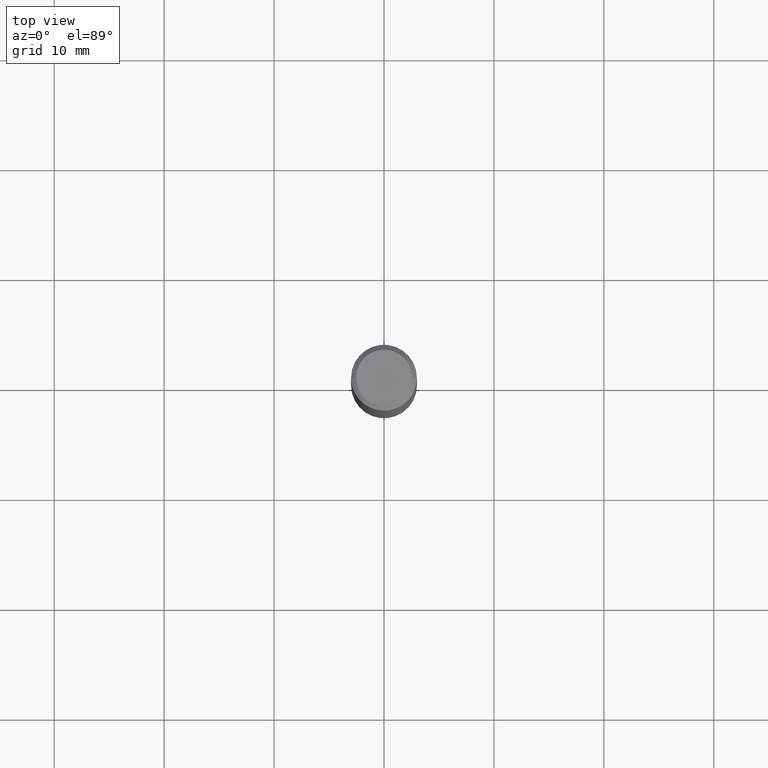
[diagram: clean part render]
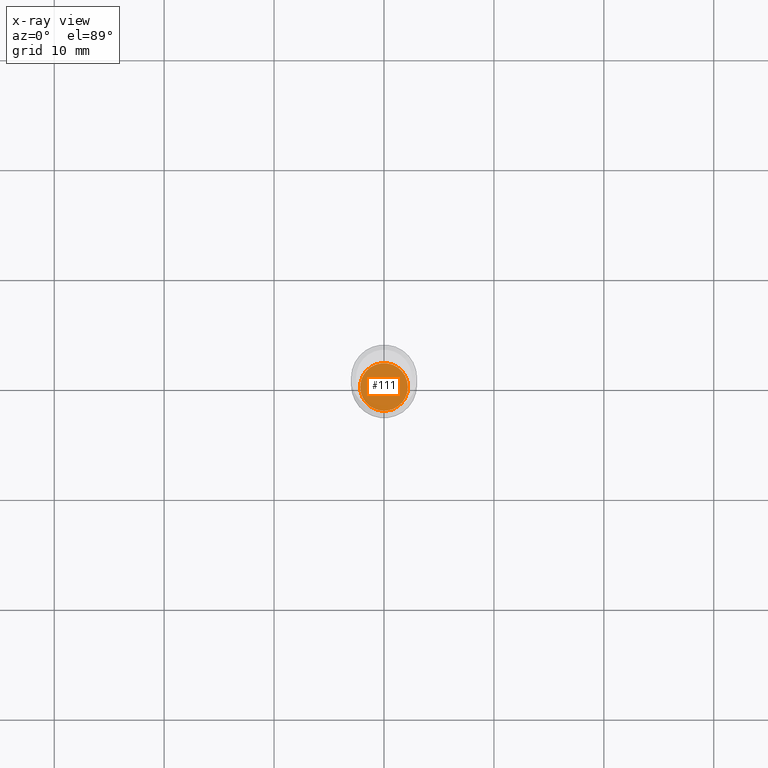
[diagram: x-ray — body ghosted, one internal face saturated and labeled with its STEP entity id]
A machine part, top view, then the same camera in x-ray: the body is ghosted and one INTERNAL B-rep face — a face not visible from any outside direction — is saturated and labeled: STEP entity #111.
In plain terms, the highlighted planar face has unit normal (-0, 0, 1).
Its self-contained STEP definition (entity closure, byte-faithful):
#14 = CARTESIAN_POINT ( 'NONE',  ( 4.717553874011746679E-29, -6.735416650762311704E-15, -1.929099999999999815 ) ) ;
#30 = VERTEX_POINT ( 'NONE', #181 ) ;
#58 = ORIENTED_EDGE ( 'NONE', *, *, #281, .F. ) ;
#73 = CIRCLE ( 'NONE', #264, 0.08544999999999998430 ) ;
#111 = ADVANCED_FACE ( 'NONE', ( #195 ), #197, .F. ) ;
#116 = DIRECTION ( 'NONE',  ( -2.445468806185136597E-29, 3.491481338843145583E-15, 1.000000000000000000 ) ) ;
#122 = DIRECTION ( 'NONE',  ( -2.445468806185136597E-29, 3.491481338843145583E-15, 1.000000000000000000 ) ) ;
#129 = CIRCLE ( 'NONE', #405, 0.08544999999999998430 ) ;
#138 = VERTEX_POINT ( 'NONE', #492 ) ;
#181 = CARTESIAN_POINT ( 'NONE',  ( 0.08544999999999998430, -7.332110811570602134E-15, -1.929099999999999815 ) ) ;
#195 = FACE_OUTER_BOUND ( 'NONE', #296, .T. ) ;
#197 = PLANE ( 'NONE',  #447 ) ;
#213 = ORIENTED_EDGE ( 'NONE', *, *, #485, .F. ) ;
#229 = CARTESIAN_POINT ( 'NONE',  ( 4.717553874011746679E-29, -6.735416650762311704E-15, -1.929099999999999815 ) ) ;
#264 = AXIS2_PLACEMENT_3D ( 'NONE', #229, #116, #371 ) ;
#281 = EDGE_CURVE ( 'NONE', #138, #30, #129, .T. ) ;
#296 = EDGE_LOOP ( 'NONE', ( #213, #58 ) ) ;
#306 = DIRECTION ( 'NONE',  ( -2.438088387897960049E-29, 3.491481338843145188E-15, 1.000000000000000000 ) ) ;
#340 = DIRECTION ( 'NONE',  ( 1.000000000000000000, -6.982962677686265922E-15, 4.876176775795935793E-29 ) ) ;
#345 = CARTESIAN_POINT ( 'NONE',  ( 4.717553874011746679E-29, -6.735416650762311704E-15, -1.929099999999999815 ) ) ;
#371 = DIRECTION ( 'NONE',  ( 1.000000000000000000, -6.982962677686267499E-15, 0.000000000000000000 ) ) ;
#405 = AXIS2_PLACEMENT_3D ( 'NONE', #14, #122, #470 ) ;
#447 = AXIS2_PLACEMENT_3D ( 'NONE', #345, #306, #340 ) ;
#470 = DIRECTION ( 'NONE',  ( 1.000000000000000000, -6.982962677686267499E-15, 0.000000000000000000 ) ) ;
#485 = EDGE_CURVE ( 'NONE', #30, #138, #73, .T. ) ;
#492 = CARTESIAN_POINT ( 'NONE',  ( -0.08544999999999998430, -6.125608655881194710E-15, -1.929099999999999815 ) ) ;